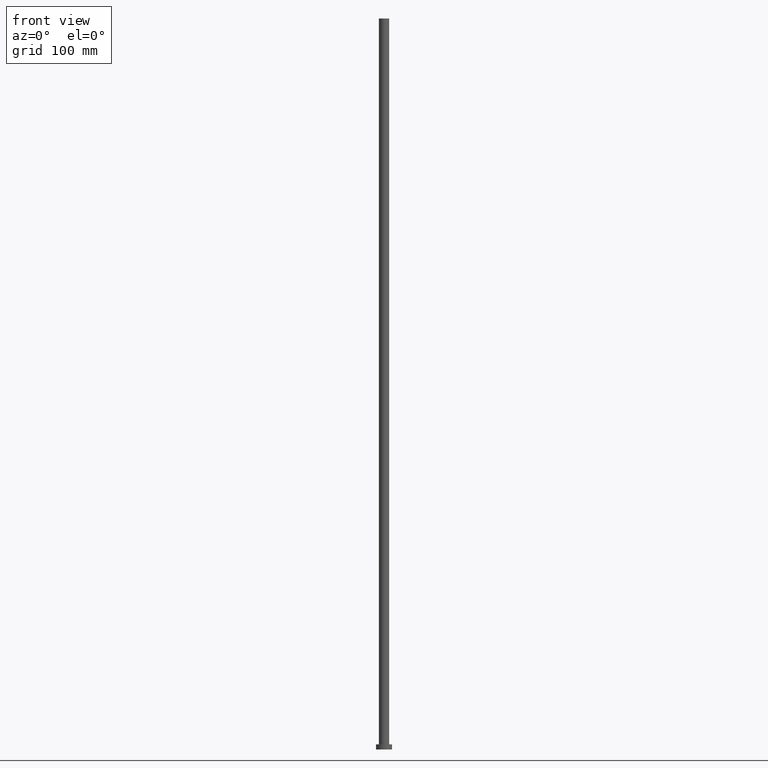
[diagram: clean part render]
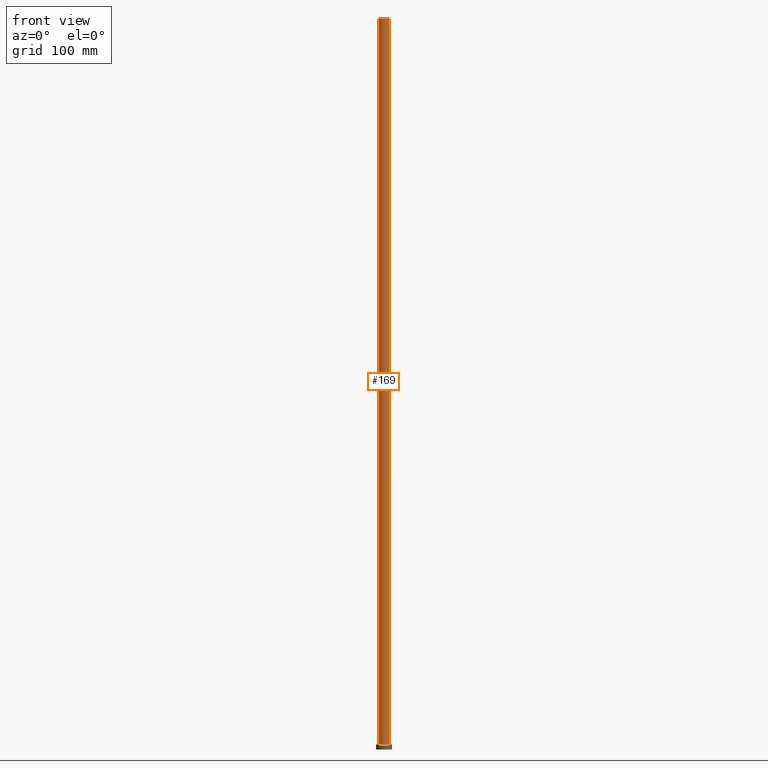
[diagram: same view with one face highlighted and labeled with its STEP entity id]
A machine part, front view. The second image highlights one B-rep face of the part: STEP entity #169.
In plain terms, the highlighted cylindrical surface (edge-blend (fillet) strip) has radius 7 mm, axis along (-0, -0, -1).
Its self-contained STEP definition (entity closure, byte-faithful):
#4 = EDGE_CURVE ( 'NONE', #222, #65, #75, .T. ) ;
#26 = VECTOR ( 'NONE', #167, 1000.000000000000000 ) ;
#29 = VERTEX_POINT ( 'NONE', #187 ) ;
#34 = CARTESIAN_POINT ( 'NONE',  ( 7.000000000000000888, 8.572527594031474176E-16, 7.000000000000000000 ) ) ;
#38 = VECTOR ( 'NONE', #213, 1000.000000000000000 ) ;
#39 = DIRECTION ( 'NONE',  ( 1.000000000000000000, 0.000000000000000000, 0.000000000000000000 ) ) ;
#56 = DIRECTION ( 'NONE',  ( -1.000000000000000000, 0.000000000000000000, 0.000000000000000000 ) ) ;
#58 = FACE_OUTER_BOUND ( 'NONE', #246, .T. ) ;
#65 = VERTEX_POINT ( 'NONE', #34 ) ;
#69 = ORIENTED_EDGE ( 'NONE', *, *, #217, .T. ) ;
#75 = LINE ( 'NONE', #106, #26 ) ;
#82 = CARTESIAN_POINT ( 'NONE',  ( 7.000000000000000888, 8.572527594031474176E-16, 1000.000000000000000 ) ) ;
#83 = LINE ( 'NONE', #152, #38 ) ;
#90 = ORIENTED_EDGE ( 'NONE', *, *, #220, .F. ) ;
#106 = CARTESIAN_POINT ( 'NONE',  ( 7.000000000000000888, 8.572527594031474176E-16, 1000.000000000000000 ) ) ;
#109 = DIRECTION ( 'NONE',  ( 0.000000000000000000, 0.000000000000000000, 1.000000000000000000 ) ) ;
#113 = CARTESIAN_POINT ( 'NONE',  ( 0.000000000000000000, 0.000000000000000000, 1000.000000000000000 ) ) ;
#114 = CARTESIAN_POINT ( 'NONE',  ( -7.000000000000000888, 0.000000000000000000, 1000.000000000000000 ) ) ;
#116 = DIRECTION ( 'NONE',  ( -0.000000000000000000, -0.000000000000000000, -1.000000000000000000 ) ) ;
#130 = DIRECTION ( 'NONE',  ( 1.000000000000000000, 0.000000000000000000, 0.000000000000000000 ) ) ;
#136 = CYLINDRICAL_SURFACE ( 'NONE', #254, 7.000000000000000888 ) ;
#138 = CIRCLE ( 'NONE', #224, 7.000000000000000888 ) ;
#151 = DIRECTION ( 'NONE',  ( 0.000000000000000000, 0.000000000000000000, 1.000000000000000000 ) ) ;
#152 = CARTESIAN_POINT ( 'NONE',  ( -7.000000000000000888, 0.000000000000000000, 1000.000000000000000 ) ) ;
#157 = CIRCLE ( 'NONE', #173, 7.000000000000000888 ) ;
#160 = ORIENTED_EDGE ( 'NONE', *, *, #4, .F. ) ;
#167 = DIRECTION ( 'NONE',  ( -0.000000000000000000, -0.000000000000000000, -1.000000000000000000 ) ) ;
#169 = ADVANCED_FACE ( 'NONE', ( #58 ), #136, .T. ) ;
#173 = AXIS2_PLACEMENT_3D ( 'NONE', #218, #109, #130 ) ;
#175 = VERTEX_POINT ( 'NONE', #114 ) ;
#187 = CARTESIAN_POINT ( 'NONE',  ( -7.000000000000000888, 0.000000000000000000, 7.000000000000000000 ) ) ;
#213 = DIRECTION ( 'NONE',  ( -0.000000000000000000, -0.000000000000000000, -1.000000000000000000 ) ) ;
#217 = EDGE_CURVE ( 'NONE', #29, #65, #138, .T. ) ;
#218 = CARTESIAN_POINT ( 'NONE',  ( 0.000000000000000000, 0.000000000000000000, 1000.000000000000000 ) ) ;
#220 = EDGE_CURVE ( 'NONE', #175, #222, #157, .T. ) ;
#222 = VERTEX_POINT ( 'NONE', #82 ) ;
#224 = AXIS2_PLACEMENT_3D ( 'NONE', #250, #151, #39 ) ;
#225 = ORIENTED_EDGE ( 'NONE', *, *, #236, .T. ) ;
#236 = EDGE_CURVE ( 'NONE', #175, #29, #83, .T. ) ;
#246 = EDGE_LOOP ( 'NONE', ( #160, #90, #225, #69 ) ) ;
#250 = CARTESIAN_POINT ( 'NONE',  ( 0.000000000000000000, 0.000000000000000000, 7.000000000000000000 ) ) ;
#254 = AXIS2_PLACEMENT_3D ( 'NONE', #113, #116, #56 ) ;